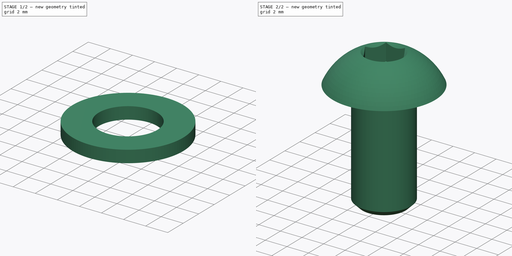
[diagram: build sequence overview — one tinted view per stage of 2, left to right]
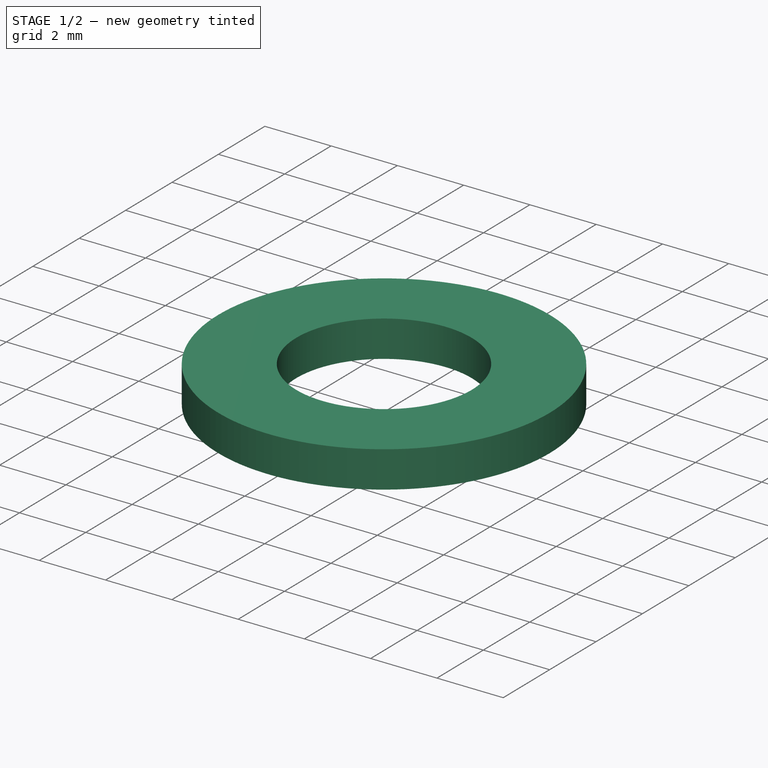
[diagram: stage 1 of 2 — iso view after this stage's code; geometry added in this stage tinted green]
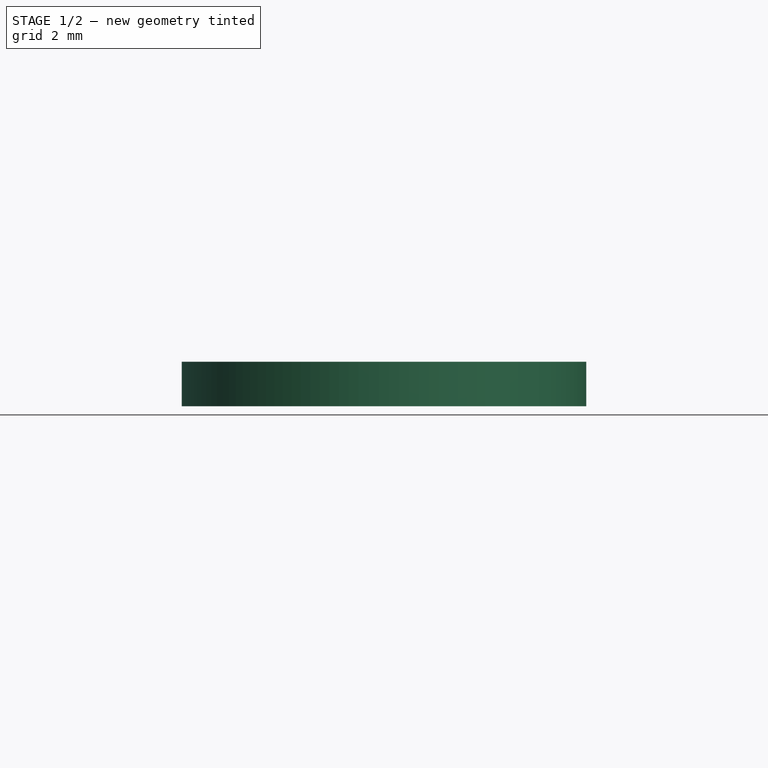
[diagram: stage 1 of 2 — front view after this stage's code; geometry added in this stage tinted green]
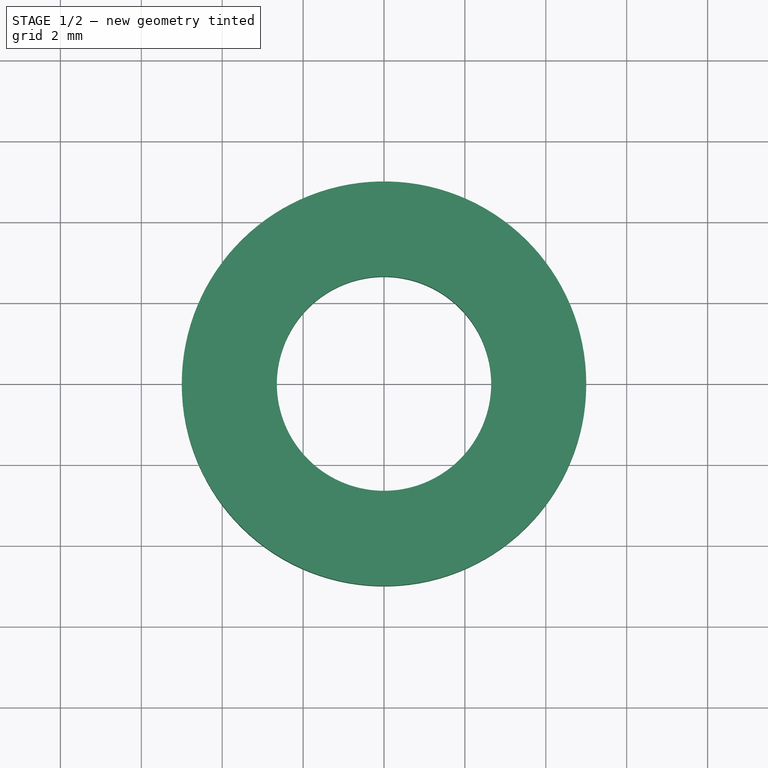
[diagram: stage 1 of 2 — top view after this stage's code; geometry added in this stage tinted green]
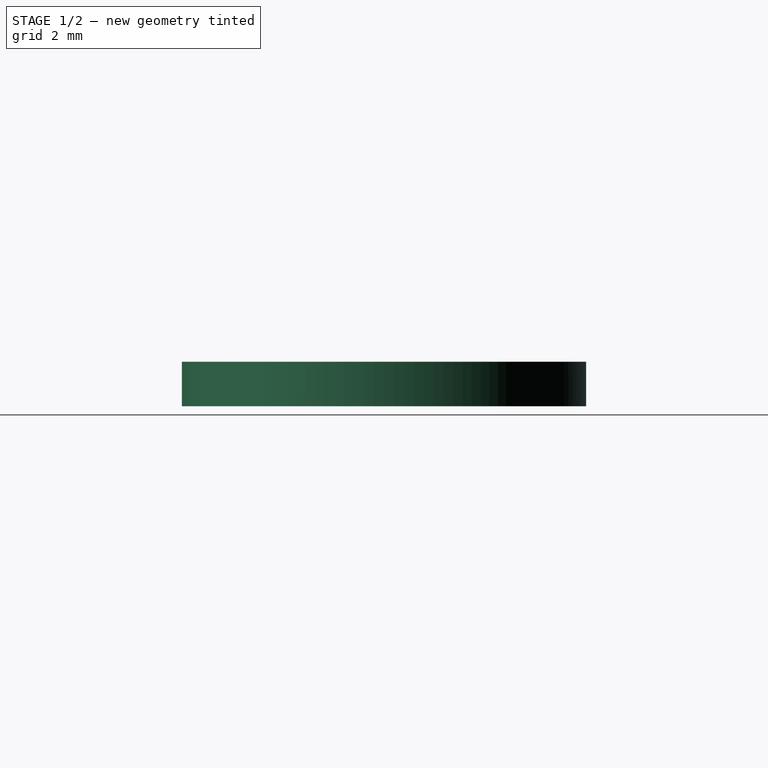
[diagram: stage 1 of 2 — right view after this stage's code; geometry added in this stage tinted green]
FCSTD DOCUMENT  (FreeCAD 0.20R29177 +426 (Git))
Label: HeadTetherMountClip
License: All rights reserved
LicenseURL: http://en.wikipedia.org/wiki/All_rights_reserved
objects: App::DocumentObjectGroup×4, Part::FeaturePython×4, PartDesign::CoordinateSystem×1, App::FeaturePython×1, Sketcher::SketchObject×1, PartDesign::Pad×1, PartDesign::Body×1, App::Part×1
note: 9 computed .brp shape members not serialized (recipe doc carries the construction recipe); baked Part::Feature solids carry a one-line shape summary decoded from their .brp

FEATURE [App::DocumentObjectGroup] Parts
FEATURE [PartDesign::CoordinateSystem] LCS_Origin
  AttacherType = Attacher::AttachEngine3D
  MapMode = 2
  Support = -> [X_Axis]
FEATURE [App::FeaturePython] Variables  # WARN: FeaturePython — macro-defined, semantics opaque (R4)
  Type = App::PropertyContainer
FEATURE [App::DocumentObjectGroup] Constraints
FEATURE [App::DocumentObjectGroup] Configurations
FEATURE [Sketcher::SketchObject] Sketch
  FullyConstrained = true
  MapMode = 5
  Support = -> [XY_Plane001]
  sketch-geometry (21):
    g0: Circle CenterX=-8 CenterY=0 CenterZ=0 NormalX=0 NormalY=0 NormalZ=1 AngleXU=0 Radius=2.7
    g1: Circle CenterX=0 CenterY=-16 CenterZ=0 NormalX=0 NormalY=0 NormalZ=1 AngleXU=0 Radius=3
    g2: ArcOfCircle CenterX=0 CenterY=-16 CenterZ=0 NormalX=0 NormalY=0 NormalZ=1 AngleXU=0 Radius=6 StartAngle=3.94927 EndAngle=5.4755
    g3: LineSegment StartX=-13.5294 StartY=-11.3629 StartZ=0 EndX=-4.14705 EndY=-20.3361 EndZ=0
    g4: LineSegment StartX=4.14705 StartY=-20.3361 StartZ=0 EndX=13.5294 EndY=-11.3629 EndZ=0
    g5: LineSegment StartX=-16 StartY=-5.58137 StartZ=0 EndX=-16 EndY=7.5 EndZ=0
    g6: LineSegment StartX=16 StartY=-5.58137 StartZ=0 EndX=16 EndY=7.5 EndZ=0
    g7: LineSegment StartX=-14.5 StartY=9 StartZ=0 EndX=14.5 EndY=9 EndZ=0
    g8: ArcOfCircle CenterX=-14.5 CenterY=7.5 CenterZ=0 NormalX=0 NormalY=0 NormalZ=1 AngleXU=0 Radius=1.5 StartAngle=1.5708 EndAngle=3.14159
    g9: GeomPoint X=-16 Y=9 Z=0
    g10: ArcOfCircle CenterX=14.5 CenterY=7.5 CenterZ=0 NormalX=0 NormalY=0 NormalZ=1 AngleXU=0 Radius=1.5 StartAngle=0 EndAngle=1.5708
    g11: GeomPoint X=16 Y=9 Z=0
    g12: GeomPoint X=0 Y=9 Z=0
    g13: ArcOfCircle CenterX=8 CenterY=-5.58137 CenterZ=0 NormalX=0 NormalY=0 NormalZ=1 AngleXU=0 Radius=8 StartAngle=5.4755 EndAngle=6.28319
    g14: GeomPoint X=16 Y=-9 Z=0
    g15: ArcOfCircle CenterX=-8 CenterY=-5.58137 CenterZ=0 NormalX=0 NormalY=0 NormalZ=1 AngleXU=0 Radius=8 StartAngle=3.14159 EndAngle=3.94927
    g16: GeomPoint X=-16 Y=-9 Z=0
    g17: LineSegment StartX=-16 StartY=-9 StartZ=0 EndX=16 EndY=-9 EndZ=0
    g18: Circle CenterX=8 CenterY=0 CenterZ=0 NormalX=0 NormalY=0 NormalZ=1 AngleXU=0 Radius=2.7
    g19: LineSegment StartX=-8 StartY=0 StartZ=0 EndX=8 EndY=0 EndZ=0
    g20: LineSegment StartX=0 StartY=9 StartZ=0 EndX=0 EndY=-9 EndZ=0
  constraints (47):
    c: PointOnObject(g1,g-2)
    c: Tangent(g3,g2) = -1.5708
    c: Tangent(g2,g4) = -1.5708
    c: Coincident(g2,g1)
    c: Diameter(g1) = 6
    c: Diameter(g0) = 5.4
    c: DistanceY(g1,g0) = 16
    c: Radius(g2) = 6
    c: Vertical(g5)
    c: Vertical(g6)
    c: Horizontal(g7)
    c: PointOnObject(g9,g7)
    c: PointOnObject(g9,g5)
    c: Tangent(g7,g8) = 1.5708
    c: Tangent(g5,g8) = 1.5708
    c: PointOnObject(g11,g7)
    c: PointOnObject(g11,g6)
    c: Tangent(g7,g10) = 1.5708
    c: Tangent(g6,g10) = -1.5708
    c: Equal(g10,g8)
    c: Radius(g10) = 1.5
    c: PointOnObject(g12,g-2)
    c: Symmetric(g7,g7,g12)
    c: PointOnObject(g14,g4)
    c: PointOnObject(g14,g6)
    c: Tangent(g4,g13) = -1.5708
    c: Tangent(g6,g13) = -1.5708
    c: PointOnObject(g16,g3)
    c: PointOnObject(g16,g5)
    c: Tangent(g3,g15) = -1.5708
    c: Tangent(g5,g15) = 1.5708
    c: Equal(g13,g15)
    c: Radius(g13) = 8
    c: Equal(g3,g4)
    c: Coincident(g17,g16)
    c: Coincident(g17,g14)
    c: DistanceY(g14,g7) = 18
    c: PointOnObject(g0,g-1)
    c: Equal(g18,g0)
    c: Coincident(g19,g0)
    c: Coincident(g19,g18)
    c: Symmetric(g18,g0,g-1)
    c: Coincident(g20,g12)
    c: PointOnObject(g20,g17)
    c: Symmetric(g20,g12,g-1)
    c: DistanceX(g19,g19) = 16  'MountHoleSpacing'
    c: DistanceX(g18,g6) = 8
FEATURE [PartDesign::Pad] Pad
  Direction = (0,0,1)
  Length = 3
  Length2 = 10
  Profile = -> Sketch
  ReferenceAxis = -> Sketch [N_Axis]
  Type = 0
FEATURE [PartDesign::Body] Body
  Group = -> [Sketch,Pad]
  Origin = -> Origin001
  Tip = -> Pad
FEATURE [Part::FeaturePython] Washer  label="M5-Washer"  # Fasteners workbench fastener (typed FeaturePython)
  Placement = pos=(-8,0,3) rot=(0,0,1;0rad)
  baseObject = -> Sketch [Edge1]
  diameter = 6
  invert = false
  matchOuter = false
  offset = 3
  type = 3
  expr: offset = <<Pad>>.Length
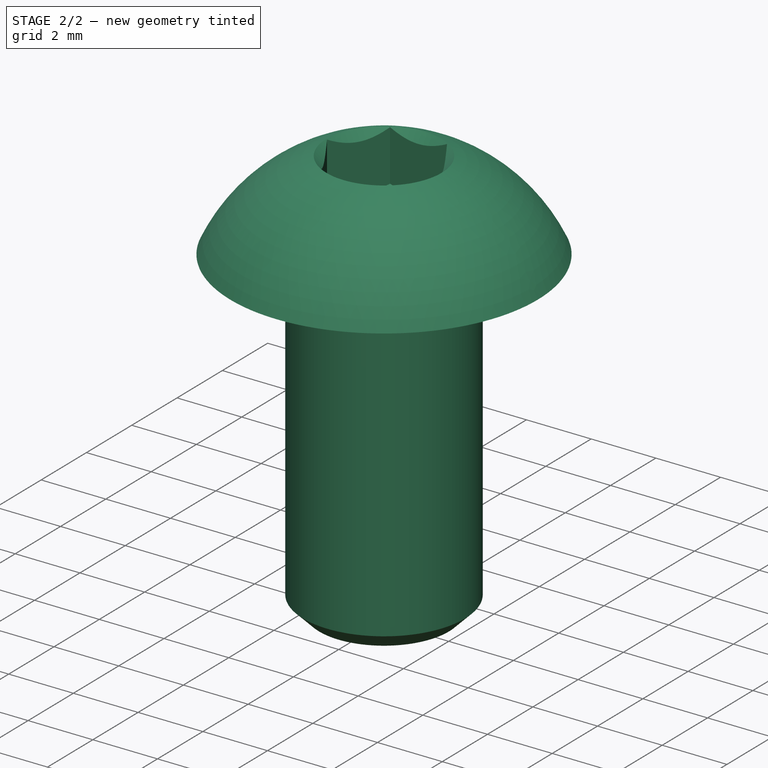
[diagram: stage 2 of 2 — iso view after this stage's code; geometry added in this stage tinted green]
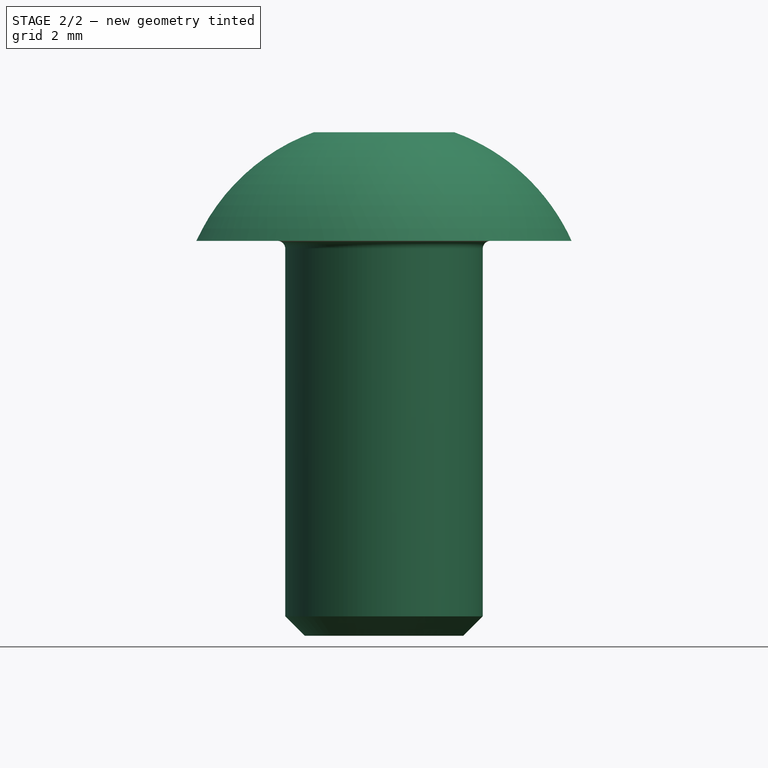
[diagram: stage 2 of 2 — front view after this stage's code; geometry added in this stage tinted green]
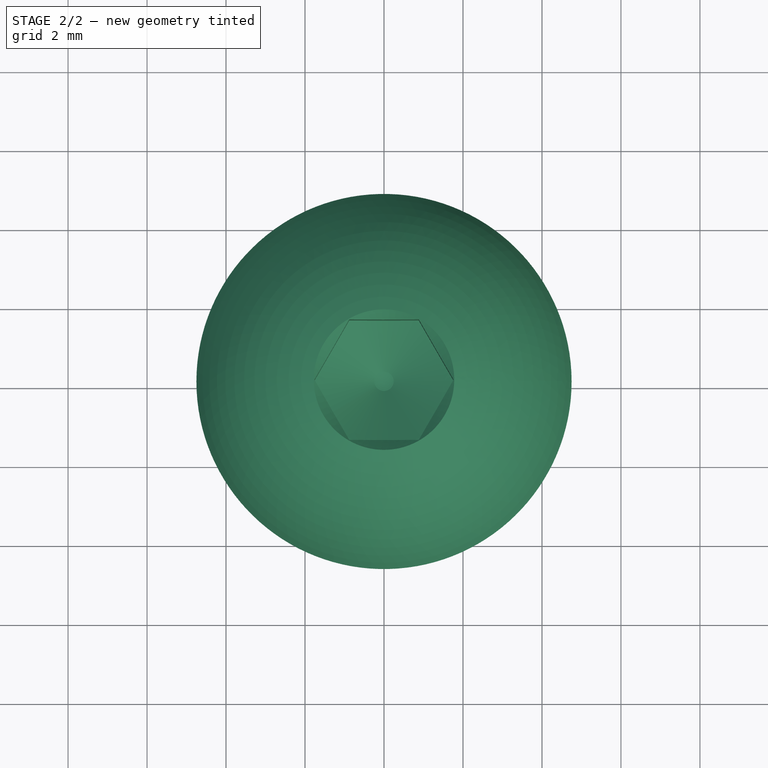
[diagram: stage 2 of 2 — top view after this stage's code; geometry added in this stage tinted green]
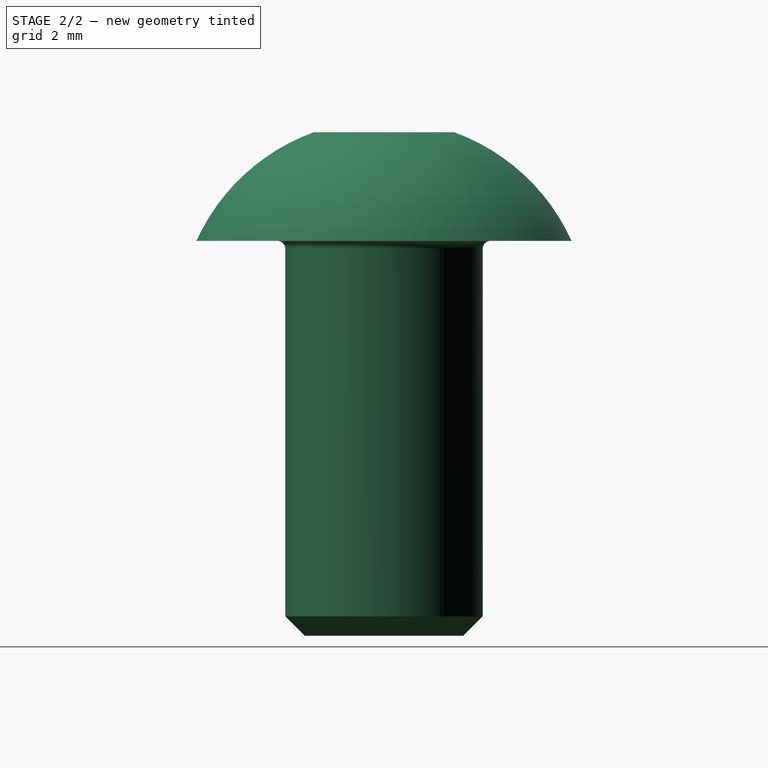
[diagram: stage 2 of 2 — right view after this stage's code; geometry added in this stage tinted green]
FEATURE [Part::FeaturePython] Screw  label="M5x10-Screw"  # Fasteners workbench fastener (typed FeaturePython)
  Placement = pos=(-8,0,4.1) rot=(0,0,1;0rad)
  baseObject = -> Washer [Edge1]
  diameter = 3
  invert = false
  leftHanded = false
  length = 1
  lengthCustom = 10
  matchOuter = false
  offset = 0
  thread = false
  type = 40
FEATURE [App::DocumentObjectGroup] Fasteners
  Group = -> [Washer,Screw]
FEATURE [Part::FeaturePython] Array_Washer  label="Array_M5-Washer"  # Draft array (typed FeaturePython)
  ArraySteps = 0
  ArrayType = Circular Array
  Axis = LCS_Origin.Z
  Count = 2
  ElementCount = 2
  FullAngle = 360
  IntervalAngle = 180
  LinearSteps = 0
  PlacementList = 2 placements: [(-8,0,3),(8,-9.79717e-16,3)]
  ScaleList = (2) [(1,1,1),(1,1,1)]
  ShowElement = false
  SourceObject = -> Washer
FEATURE [Part::FeaturePython] Array_Screw  label="Array_M5x10-Screw"  # Draft array (typed FeaturePython)
  ArraySteps = 0
  ArrayType = Circular Array
  Axis = LCS_Origin.Z
  Count = 2
  ElementCount = 2
  FullAngle = 360
  IntervalAngle = 180
  LinearSteps = 0
  PlacementList = 2 placements: [(-8,0,4.1),(8,-9.79717e-16,4.1)]
  ScaleList = (2) [(1,1,1),(1,1,1)]
  ShowElement = false
  SourceObject = -> Screw
FEATURE [App::Part] Assembly
  AssemblyType = Part::Link
  Group = -> [LCS_Origin,Variables,Constraints,Configurations,Body,Fasteners,Washer,Screw,Array_Washer,Array_Screw]
  Origin = -> Origin
  Type = Assembly
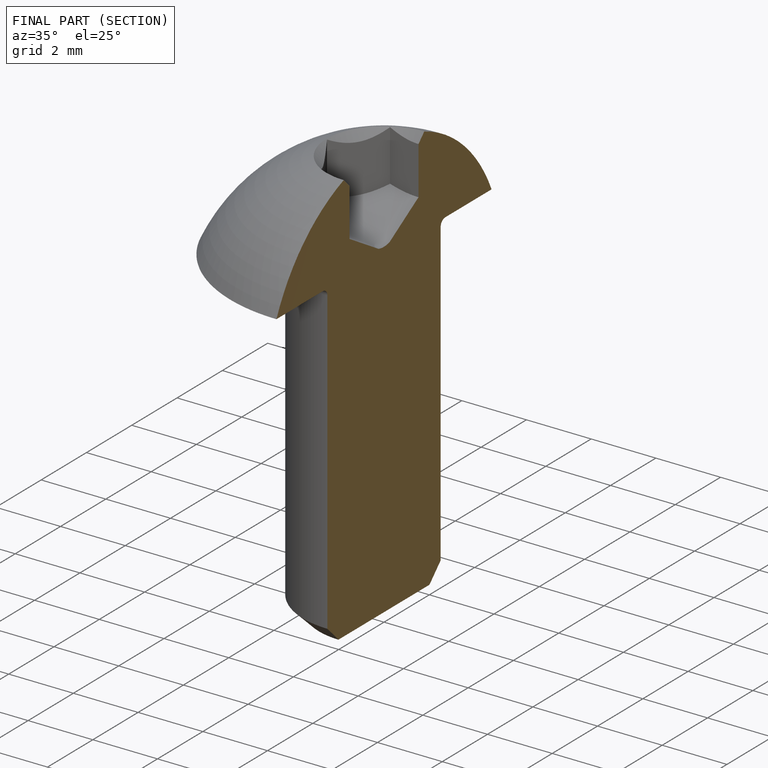
[diagram: finished part — half-section view (interior)]
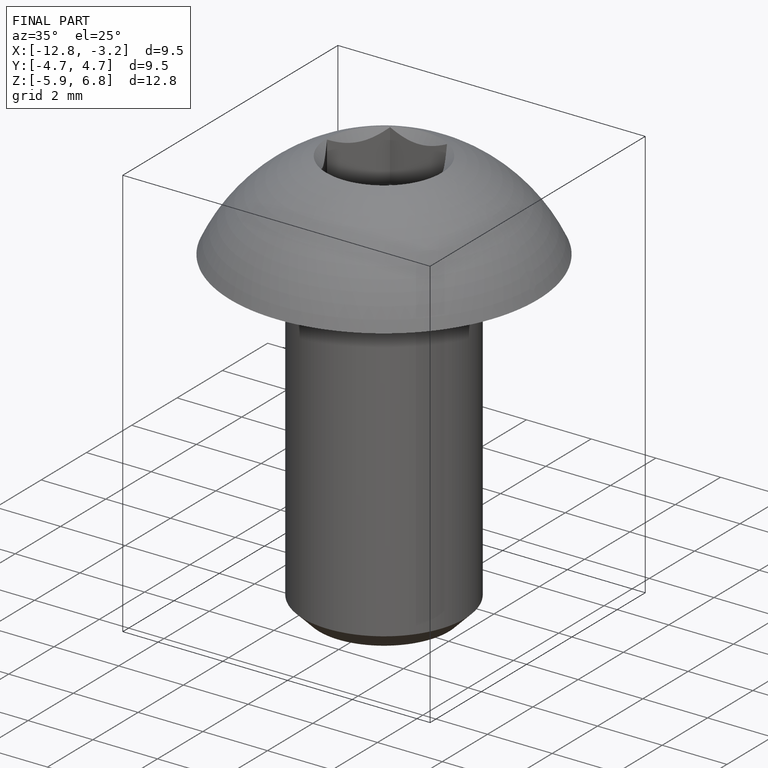
[diagram: finished part — iso view with bounding-box wireframe]
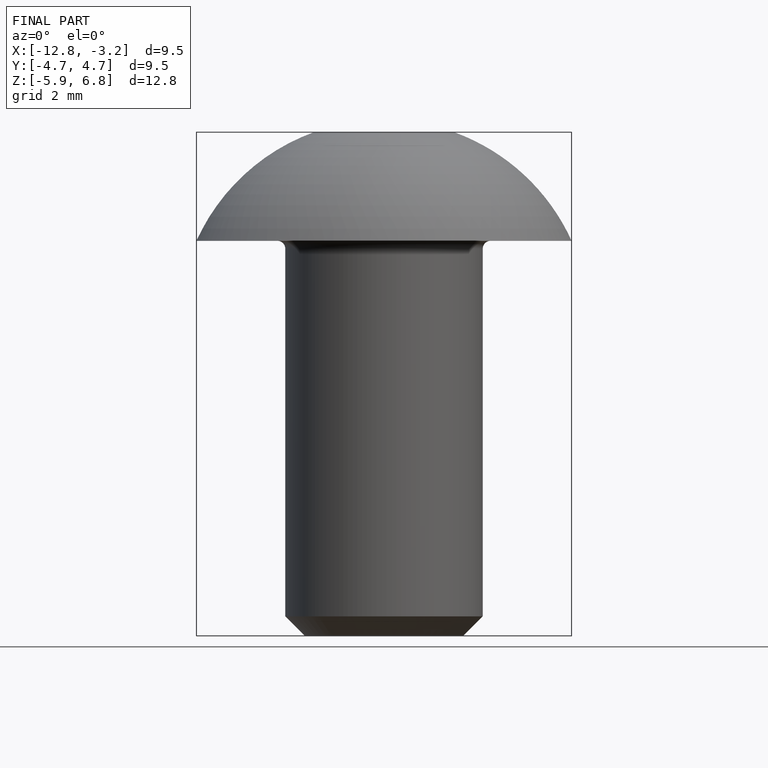
[diagram: finished part — front view with bounding-box wireframe]
